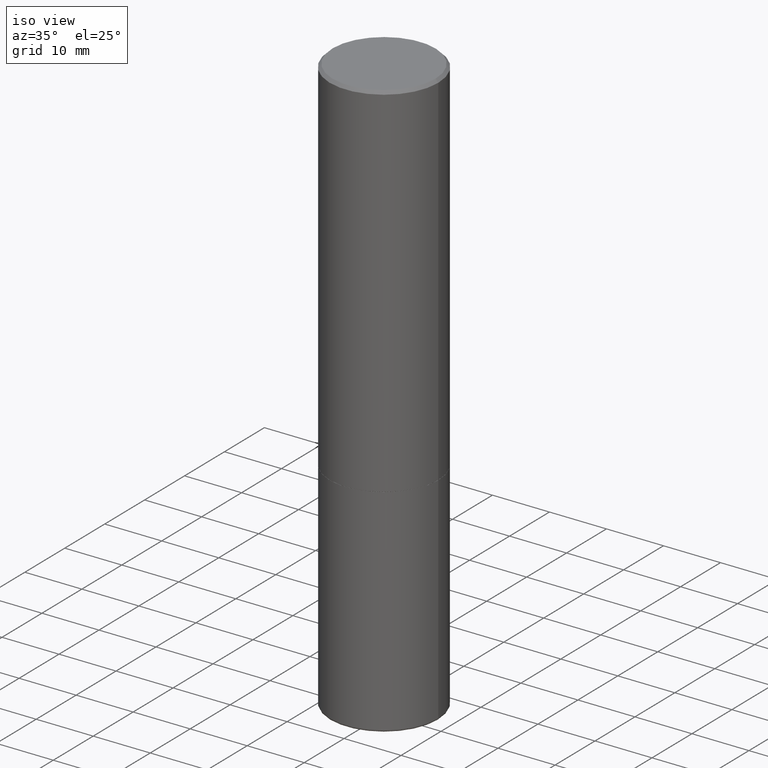
[diagram: clean part render]
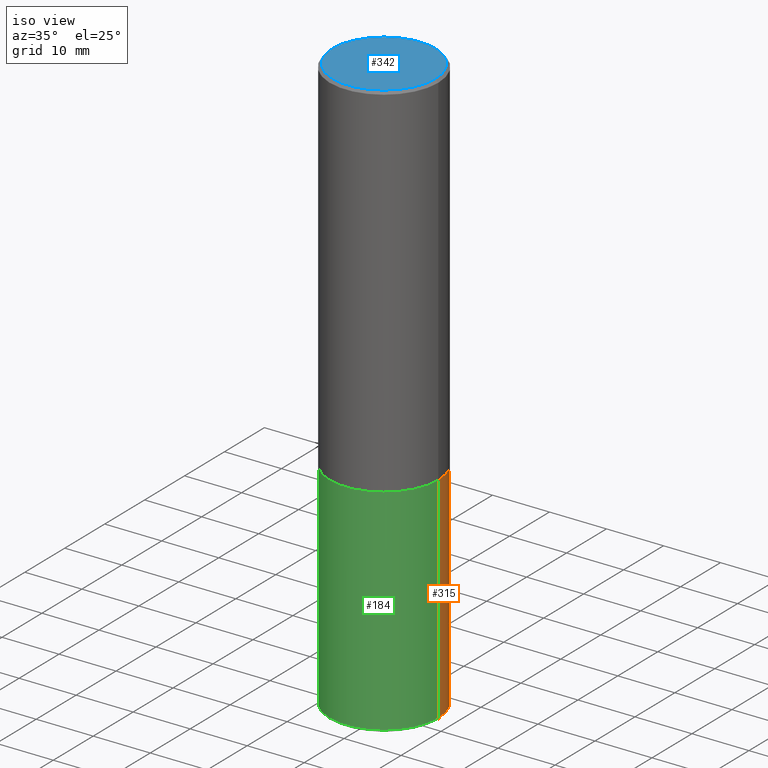
[diagram: same view with three faces highlighted in distinct colors, each labeled with its STEP entity id]
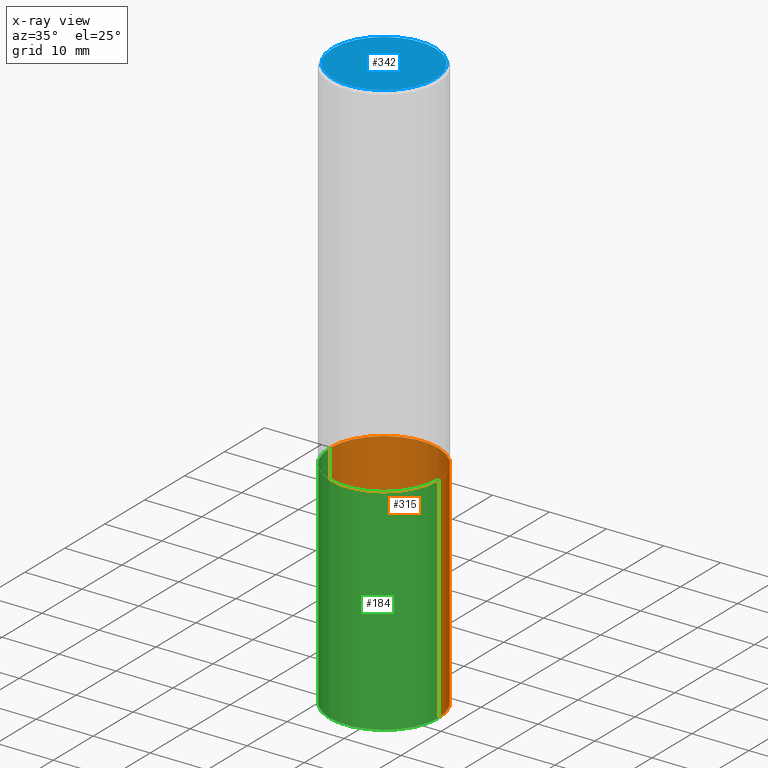
[diagram: x-ray of the same camera — body ghosted, the three highlighted faces saturated]
A machine part, iso view with three faces highlighted in distinct colors.
The next image is the same camera in x-ray (body ghosted, the three faces saturated) — at least one of them is partly hidden behind the body in this view.
Their STEP definitions:

[orange] entity #315 — the highlighted cylindrical surface (partial cylindrical patch) has radius 9.525 mm, axis along (-0, 0, 1).
#13 = VERTEX_POINT ( 'NONE', #378 ) ;
#24 = CARTESIAN_POINT ( 'NONE',  ( -0.3750000000000000555, -8.656628869252251980E-15, -2.500000000000000000 ) ) ;
#27 = EDGE_CURVE ( 'NONE', #13, #338, #167, .T. ) ;
#57 = ORIENTED_EDGE ( 'NONE', *, *, #27, .T. ) ;
#76 = EDGE_CURVE ( 'NONE', #105, #400, #200, .T. ) ;
#93 = DIRECTION ( 'NONE',  ( -2.445468806185136597E-29, 3.491481338843145583E-15, 1.000000000000000000 ) ) ;
#99 = DIRECTION ( 'NONE',  ( -2.445468806185136877E-29, 3.491481338843145188E-15, 1.000000000000000000 ) ) ;
#103 = DIRECTION ( 'NONE',  ( 1.000000000000000000, -6.982962677686266711E-15, 4.876176775795935793E-29 ) ) ;
#105 = VERTEX_POINT ( 'NONE', #320 ) ;
#106 = DIRECTION ( 'NONE',  ( -2.445468806185136877E-29, 3.491481338843145188E-15, 1.000000000000000000 ) ) ;
#111 = CYLINDRICAL_SURFACE ( 'NONE', #145, 0.3749999999999998890 ) ;
#120 = VECTOR ( 'NONE', #106, 39.37007874015748143 ) ;
#128 = CIRCLE ( 'NONE', #357, 0.3750000000000000555 ) ;
#145 = AXIS2_PLACEMENT_3D ( 'NONE', #343, #382, #103 ) ;
#167 = LINE ( 'NONE', #208, #120 ) ;
#174 = ORIENTED_EDGE ( 'NONE', *, *, #194, .F. ) ;
#181 = CIRCLE ( 'NONE', #381, 0.3749999999999997780 ) ;
#194 = EDGE_CURVE ( 'NONE', #400, #338, #128, .T. ) ;
#199 = DIRECTION ( 'NONE',  ( -2.445468806185136597E-29, 3.491481338843145583E-15, 1.000000000000000000 ) ) ;
#200 = LINE ( 'NONE', #401, #285 ) ;
#205 = EDGE_LOOP ( 'NONE', ( #383, #57, #174, #377 ) ) ;
#208 = CARTESIAN_POINT ( 'NONE',  ( -0.3749999999999998890, 2.664535259100374908E-15, -1.844600658845589038E-29 ) ) ;
#220 = CARTESIAN_POINT ( 'NONE',  ( 0.3750000000000000555, -1.134731435124021338E-14, -2.500000000000000000 ) ) ;
#260 = CARTESIAN_POINT ( 'NONE',  ( 9.745243464097887421E-29, -1.391362490959739041E-14, -3.985020556978683182 ) ) ;
#285 = VECTOR ( 'NONE', #99, 39.37007874015748143 ) ;
#306 = FACE_OUTER_BOUND ( 'NONE', #205, .T. ) ;
#315 = ADVANCED_FACE ( 'NONE', ( #306 ), #111, .T. ) ;
#320 = CARTESIAN_POINT ( 'NONE',  ( 0.3749999999999997780, -1.653223591372973727E-14, -3.985020556978683182 ) ) ;
#338 = VERTEX_POINT ( 'NONE', #24 ) ;
#343 = CARTESIAN_POINT ( 'NONE',  ( 0.000000000000000000, 0.000000000000000000, 0.000000000000000000 ) ) ;
#353 = DIRECTION ( 'NONE',  ( 1.000000000000000000, -6.982962677686264344E-15, 0.000000000000000000 ) ) ;
#356 = CARTESIAN_POINT ( 'NONE',  ( 6.113672015462842613E-29, -8.728703347107864943E-15, -2.500000000000000000 ) ) ;
#357 = AXIS2_PLACEMENT_3D ( 'NONE', #356, #93, #353 ) ;
#361 = DIRECTION ( 'NONE',  ( 1.000000000000000000, -6.982962677686266711E-15, 0.000000000000000000 ) ) ;
#377 = ORIENTED_EDGE ( 'NONE', *, *, #76, .F. ) ;
#378 = CARTESIAN_POINT ( 'NONE',  ( -0.3749999999999997780, -8.656628869252253558E-15, -3.985020556978683182 ) ) ;
#381 = AXIS2_PLACEMENT_3D ( 'NONE', #260, #199, #361 ) ;
#382 = DIRECTION ( 'NONE',  ( -2.445468806185136597E-29, 3.491481338843145583E-15, 1.000000000000000000 ) ) ;
#383 = ORIENTED_EDGE ( 'NONE', *, *, #386, .T. ) ;
#386 = EDGE_CURVE ( 'NONE', #105, #13, #181, .T. ) ;
#400 = VERTEX_POINT ( 'NONE', #220 ) ;
#401 = CARTESIAN_POINT ( 'NONE',  ( 0.3749999999999998890, -2.618611004132349228E-15, 1.828566290923475362E-29 ) ) ;

[blue] entity #342 — the highlighted planar face has unit normal (0, -0, -1).
#3 = ORIENTED_EDGE ( 'NONE', *, *, #90, .T. ) ;
#22 = FACE_OUTER_BOUND ( 'NONE', #193, .T. ) ;
#25 = CARTESIAN_POINT ( 'NONE',  ( -1.043851414335219820E-46, 1.490343170380447200E-32, 4.268512490100411279E-18 ) ) ;
#90 = EDGE_CURVE ( 'NONE', #133, #404, #222, .T. ) ;
#121 = CARTESIAN_POINT ( 'NONE',  ( 2.478951750578622237E-15, 0.3549999999999997047, -1.237341619044265441E-15 ) ) ;
#125 = CARTESIAN_POINT ( 'NONE',  ( -0.3549999999999997047, 2.513866563967053491E-15, 4.268512490082953109E-18 ) ) ;
#133 = VERTEX_POINT ( 'NONE', #366 ) ;
#139 = EDGE_CURVE ( 'NONE', #404, #133, #380, .T. ) ;
#154 = AXIS2_PLACEMENT_3D ( 'NONE', #121, #391, #218 ) ;
#193 = EDGE_LOOP ( 'NONE', ( #304, #3 ) ) ;
#218 = DIRECTION ( 'NONE',  ( -1.000000000000000000, 6.982962677686265922E-15, -4.876176775795935793E-29 ) ) ;
#221 = DIRECTION ( 'NONE',  ( -2.445468806185136597E-29, 3.491481338843145583E-15, 1.000000000000000000 ) ) ;
#222 = CIRCLE ( 'NONE', #281, 0.3549999999999997047 ) ;
#252 = CARTESIAN_POINT ( 'NONE',  ( -1.043851414335219820E-46, 1.490343170380447200E-32, 4.268512490100411279E-18 ) ) ;
#263 = DIRECTION ( 'NONE',  ( -2.445468806185136597E-29, 3.491481338843145583E-15, 1.000000000000000000 ) ) ;
#268 = AXIS2_PLACEMENT_3D ( 'NONE', #252, #263, #329 ) ;
#281 = AXIS2_PLACEMENT_3D ( 'NONE', #25, #221, #359 ) ;
#304 = ORIENTED_EDGE ( 'NONE', *, *, #139, .T. ) ;
#329 = DIRECTION ( 'NONE',  ( 1.000000000000000000, -6.982962677686265922E-15, 4.876231632511992107E-29 ) ) ;
#342 = ADVANCED_FACE ( 'NONE', ( #22 ), #428, .F. ) ;
#359 = DIRECTION ( 'NONE',  ( 1.000000000000000000, -6.982962677686265922E-15, 4.876231632511992107E-29 ) ) ;
#366 = CARTESIAN_POINT ( 'NONE',  ( 0.3549999999999997047, -2.538996582575038287E-15, 4.268512490117958041E-18 ) ) ;
#380 = CIRCLE ( 'NONE', #268, 0.3549999999999997047 ) ;
#391 = DIRECTION ( 'NONE',  ( 2.438088387897960049E-29, -3.491481338843145188E-15, -1.000000000000000000 ) ) ;
#404 = VERTEX_POINT ( 'NONE', #125 ) ;
#428 = PLANE ( 'NONE',  #154 ) ;

[green] entity #184 — the highlighted cylindrical surface (partial cylindrical patch) has radius 9.525 mm, axis along (-0, 0, 1).
#13 = VERTEX_POINT ( 'NONE', #378 ) ;
#24 = CARTESIAN_POINT ( 'NONE',  ( -0.3750000000000000555, -8.656628869252251980E-15, -2.500000000000000000 ) ) ;
#26 = FACE_OUTER_BOUND ( 'NONE', #102, .T. ) ;
#27 = EDGE_CURVE ( 'NONE', #13, #338, #167, .T. ) ;
#43 = AXIS2_PLACEMENT_3D ( 'NONE', #97, #290, #435 ) ;
#71 = ORIENTED_EDGE ( 'NONE', *, *, #27, .F. ) ;
#76 = EDGE_CURVE ( 'NONE', #105, #400, #200, .T. ) ;
#85 = CIRCLE ( 'NONE', #43, 0.3750000000000000555 ) ;
#89 = CARTESIAN_POINT ( 'NONE',  ( 0.000000000000000000, 0.000000000000000000, 0.000000000000000000 ) ) ;
#97 = CARTESIAN_POINT ( 'NONE',  ( 6.113672015462842613E-29, -8.728703347107864943E-15, -2.500000000000000000 ) ) ;
#99 = DIRECTION ( 'NONE',  ( -2.445468806185136877E-29, 3.491481338843145188E-15, 1.000000000000000000 ) ) ;
#102 = EDGE_LOOP ( 'NONE', ( #71, #431, #179, #372 ) ) ;
#105 = VERTEX_POINT ( 'NONE', #320 ) ;
#106 = DIRECTION ( 'NONE',  ( -2.445468806185136877E-29, 3.491481338843145188E-15, 1.000000000000000000 ) ) ;
#112 = AXIS2_PLACEMENT_3D ( 'NONE', #89, #219, #402 ) ;
#120 = VECTOR ( 'NONE', #106, 39.37007874015748143 ) ;
#141 = DIRECTION ( 'NONE',  ( -2.445468806185136597E-29, 3.491481338843145583E-15, 1.000000000000000000 ) ) ;
#163 = DIRECTION ( 'NONE',  ( 1.000000000000000000, -6.982962677686266711E-15, 0.000000000000000000 ) ) ;
#167 = LINE ( 'NONE', #208, #120 ) ;
#179 = ORIENTED_EDGE ( 'NONE', *, *, #76, .T. ) ;
#184 = ADVANCED_FACE ( 'NONE', ( #26 ), #393, .T. ) ;
#200 = LINE ( 'NONE', #401, #285 ) ;
#208 = CARTESIAN_POINT ( 'NONE',  ( -0.3749999999999998890, 2.664535259100374908E-15, -1.844600658845589038E-29 ) ) ;
#219 = DIRECTION ( 'NONE',  ( -2.445468806185136597E-29, 3.491481338843145583E-15, 1.000000000000000000 ) ) ;
#220 = CARTESIAN_POINT ( 'NONE',  ( 0.3750000000000000555, -1.134731435124021338E-14, -2.500000000000000000 ) ) ;
#285 = VECTOR ( 'NONE', #99, 39.37007874015748143 ) ;
#286 = CIRCLE ( 'NONE', #313, 0.3749999999999997780 ) ;
#290 = DIRECTION ( 'NONE',  ( -2.445468806185136597E-29, 3.491481338843145583E-15, 1.000000000000000000 ) ) ;
#313 = AXIS2_PLACEMENT_3D ( 'NONE', #399, #141, #163 ) ;
#320 = CARTESIAN_POINT ( 'NONE',  ( 0.3749999999999997780, -1.653223591372973727E-14, -3.985020556978683182 ) ) ;
#338 = VERTEX_POINT ( 'NONE', #24 ) ;
#372 = ORIENTED_EDGE ( 'NONE', *, *, #374, .F. ) ;
#374 = EDGE_CURVE ( 'NONE', #338, #400, #85, .T. ) ;
#378 = CARTESIAN_POINT ( 'NONE',  ( -0.3749999999999997780, -8.656628869252253558E-15, -3.985020556978683182 ) ) ;
#389 = EDGE_CURVE ( 'NONE', #13, #105, #286, .T. ) ;
#393 = CYLINDRICAL_SURFACE ( 'NONE', #112, 0.3749999999999998890 ) ;
#399 = CARTESIAN_POINT ( 'NONE',  ( 9.745243464097887421E-29, -1.391362490959739041E-14, -3.985020556978683182 ) ) ;
#400 = VERTEX_POINT ( 'NONE', #220 ) ;
#401 = CARTESIAN_POINT ( 'NONE',  ( 0.3749999999999998890, -2.618611004132349228E-15, 1.828566290923475362E-29 ) ) ;
#402 = DIRECTION ( 'NONE',  ( 1.000000000000000000, -6.982962677686266711E-15, 4.876176775795935793E-29 ) ) ;
#431 = ORIENTED_EDGE ( 'NONE', *, *, #389, .T. ) ;
#435 = DIRECTION ( 'NONE',  ( 1.000000000000000000, -6.982962677686264344E-15, 0.000000000000000000 ) ) ;